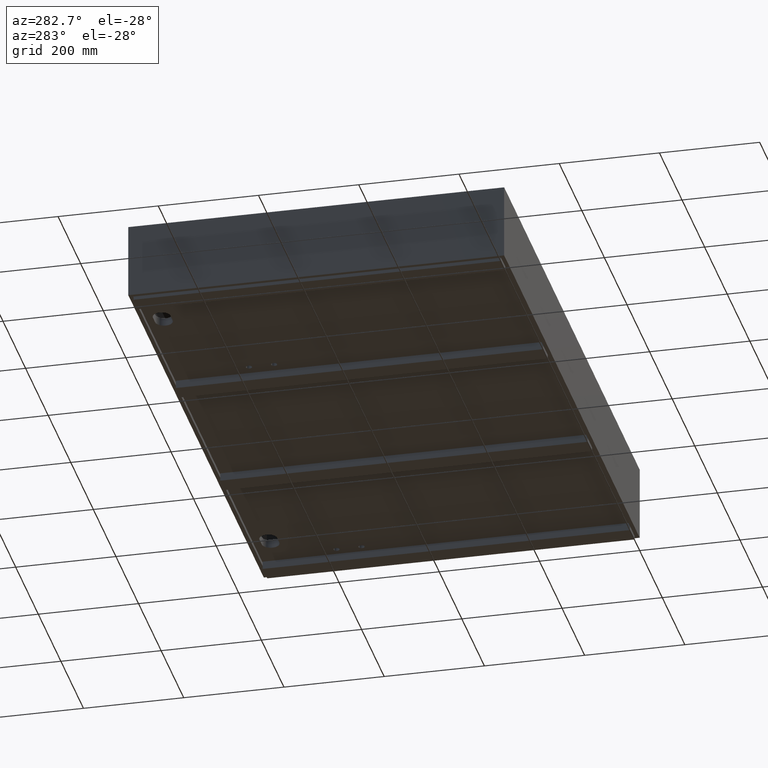
[diagram: clean part render]
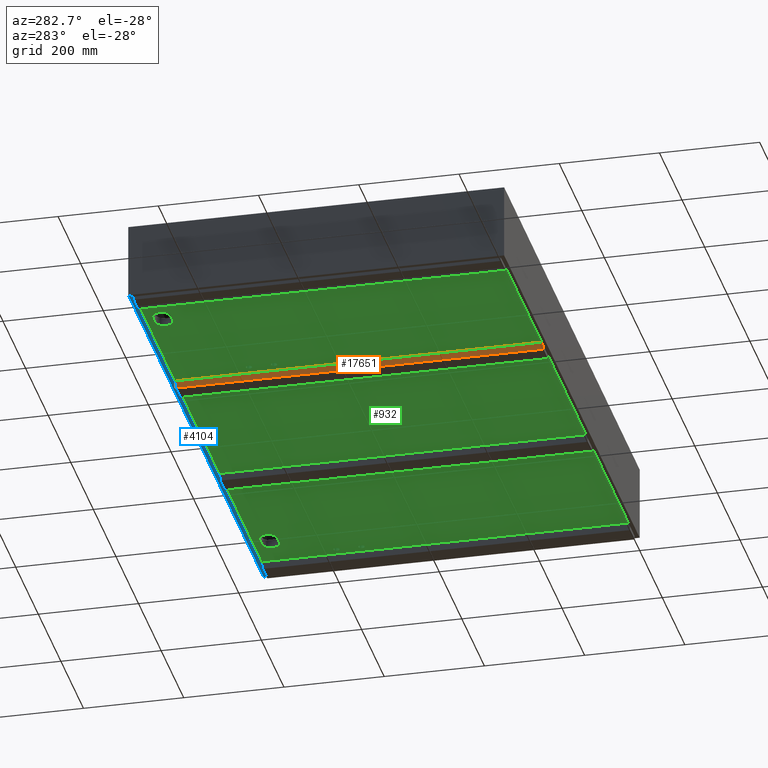
[diagram: same view with three faces highlighted in distinct colors, each labeled with its STEP entity id]
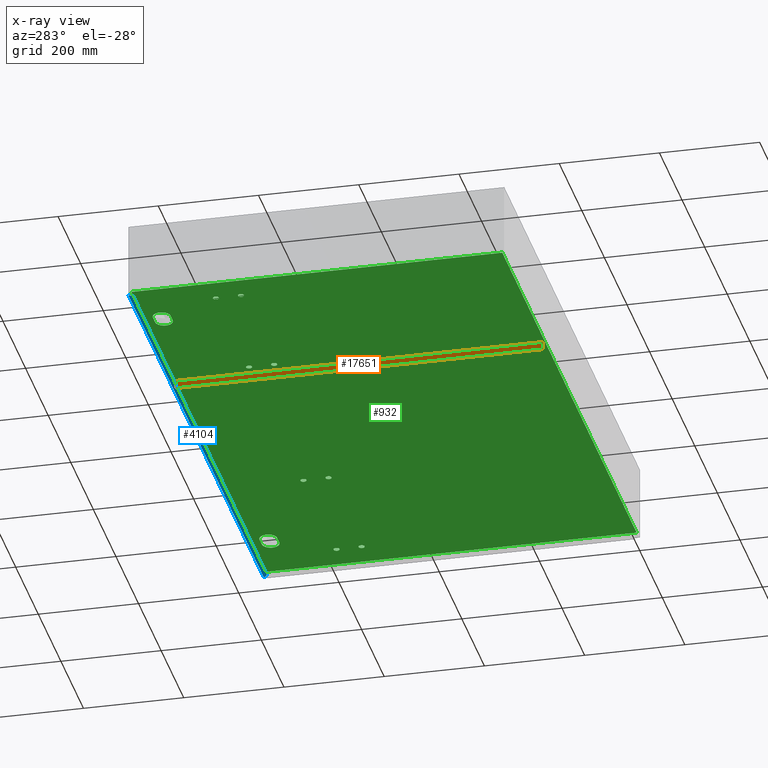
[diagram: x-ray of the same camera — body ghosted, the three highlighted faces saturated]
A machine part, auxiliary view with three faces highlighted in distinct colors.
The next image is the same camera in x-ray (body ghosted, the three faces saturated) — at least one of them is partly hidden behind the body in this view.
Their STEP definitions:

[orange] entity #17651 — the highlighted planar face has unit normal (1, -0, -0).
#112 = EDGE_CURVE ( 'NONE', #16690, #12992, #13057, .T. ) ;
#161 = CARTESIAN_POINT ( 'NONE',  ( 383.1600000000001955, 741.4999000000001388, -157.0000000000003126 ) ) ;
#168 = AXIS2_PLACEMENT_3D ( 'NONE', #18053, #5183, #10916 ) ;
#302 = DIRECTION ( 'NONE',  ( 1.423362852083534639E-16, 0.0000000000000000000, 1.000000000000000000 ) ) ;
#656 = ORIENTED_EDGE ( 'NONE', *, *, #112, .F. ) ;
#1044 = EDGE_CURVE ( 'NONE', #12992, #14423, #5702, .T. ) ;
#1597 = CARTESIAN_POINT ( 'NONE',  ( 383.1600000000001955, 741.4999000000001388, -141.0000000000002842 ) ) ;
#2062 = EDGE_LOOP ( 'NONE', ( #6955, #13402, #656, #9463 ) ) ;
#3497 = VERTEX_POINT ( 'NONE', #15848 ) ;
#3734 = CARTESIAN_POINT ( 'NONE',  ( 383.1600000000001955, 741.4999000000001388, -141.0000000000002842 ) ) ;
#4249 = VECTOR ( 'NONE', #7349, 1000.000000000000000 ) ;
#4493 = CARTESIAN_POINT ( 'NONE',  ( 383.1600000000001955, 741.4999000000001388, -157.0000000000003126 ) ) ;
#5183 = DIRECTION ( 'NONE',  ( 1.000000000000000000, -7.573145812333373714E-17, -1.423362852083534639E-16 ) ) ;
#5702 = LINE ( 'NONE', #11432, #12082 ) ;
#5903 = DIRECTION ( 'NONE',  ( 7.573145812333373714E-17, 1.000000000000000000, 3.851859888774471706E-34 ) ) ;
#5996 = CARTESIAN_POINT ( 'NONE',  ( 383.1600000000001955, 8.499999999999952038, -157.0000000000003126 ) ) ;
#6615 = FACE_OUTER_BOUND ( 'NONE', #2062, .T. ) ;
#6955 = ORIENTED_EDGE ( 'NONE', *, *, #12569, .T. ) ;
#7349 = DIRECTION ( 'NONE',  ( 7.573145812333373714E-17, 1.000000000000000000, 3.851859888774471706E-34 ) ) ;
#7468 = LINE ( 'NONE', #13201, #8580 ) ;
#8580 = VECTOR ( 'NONE', #302, 1000.000000000000000 ) ;
#9463 = ORIENTED_EDGE ( 'NONE', *, *, #17490, .T. ) ;
#10916 = DIRECTION ( 'NONE',  ( -1.423362852083534639E-16, 0.0000000000000000000, -1.000000000000000000 ) ) ;
#11206 = VECTOR ( 'NONE', #5903, 1000.000000000000000 ) ;
#11432 = CARTESIAN_POINT ( 'NONE',  ( 383.1600000000001955, 741.4999000000001388, -157.0000000000003126 ) ) ;
#12082 = VECTOR ( 'NONE', #17164, 1000.000000000000000 ) ;
#12337 = PLANE ( 'NONE',  #168 ) ;
#12569 = EDGE_CURVE ( 'NONE', #3497, #14423, #14483, .T. ) ;
#12992 = VERTEX_POINT ( 'NONE', #4493 ) ;
#13057 = LINE ( 'NONE', #161, #11206 ) ;
#13201 = CARTESIAN_POINT ( 'NONE',  ( 383.1600000000001955, 8.499999999999952038, -157.0000000000003126 ) ) ;
#13402 = ORIENTED_EDGE ( 'NONE', *, *, #1044, .F. ) ;
#14423 = VERTEX_POINT ( 'NONE', #3734 ) ;
#14483 = LINE ( 'NONE', #1597, #4249 ) ;
#15848 = CARTESIAN_POINT ( 'NONE',  ( 383.1600000000001955, 8.499999999999952038, -141.0000000000002842 ) ) ;
#16690 = VERTEX_POINT ( 'NONE', #5996 ) ;
#17164 = DIRECTION ( 'NONE',  ( 1.423362852083534639E-16, 0.0000000000000000000, 1.000000000000000000 ) ) ;
#17490 = EDGE_CURVE ( 'NONE', #16690, #3497, #7468, .T. ) ;
#17651 = ADVANCED_FACE ( 'NONE', ( #6615 ), #12337, .F. ) ;
#18053 = CARTESIAN_POINT ( 'NONE',  ( 383.1600000000001955, 741.4999000000001388, -157.0000000000003126 ) ) ;

[blue] entity #4104 — the highlighted planar face has unit normal (-0, 0, -1).
#524 = ORIENTED_EDGE ( 'NONE', *, *, #17081, .T. ) ;
#771 = DIRECTION ( 'NONE',  ( -6.516564522766498812E-33, 2.510089349785503441E-66, -1.000000000000000000 ) ) ;
#1637 = VECTOR ( 'NONE', #2807, 1000.000000000000114 ) ;
#1835 = CARTESIAN_POINT ( 'NONE',  ( 3.999999999999892530, 745.9999000000000251, -150.0000000000000284 ) ) ;
#1961 = VECTOR ( 'NONE', #7579, 1000.000000000000114 ) ;
#2185 = FACE_OUTER_BOUND ( 'NONE', #15066, .T. ) ;
#2807 = DIRECTION ( 'NONE',  ( -0.7071067811865522357, -0.7071067811865426878, 0.0000000000000000000 ) ) ;
#3954 = LINE ( 'NONE', #9704, #10101 ) ;
#4104 = ADVANCED_FACE ( 'NONE', ( #2185 ), #7934, .T. ) ;
#4303 = CARTESIAN_POINT ( 'NONE',  ( 8.000000000000007105, 741.9999000000000251, -150.0000000000000284 ) ) ;
#4620 = AXIS2_PLACEMENT_3D ( 'NONE', #13670, #771, #6530 ) ;
#4848 = LINE ( 'NONE', #10587, #7460 ) ;
#6052 = EDGE_CURVE ( 'NONE', #14312, #6305, #3954, .T. ) ;
#6305 = VERTEX_POINT ( 'NONE', #4303 ) ;
#6328 = ORIENTED_EDGE ( 'NONE', *, *, #6052, .T. ) ;
#6530 = DIRECTION ( 'NONE',  ( -1.000000000000000000, 1.925929944387235853E-34, 6.516564522766498812E-33 ) ) ;
#6565 = VERTEX_POINT ( 'NONE', #14133 ) ;
#6758 = VERTEX_POINT ( 'NONE', #13298 ) ;
#6953 = ORIENTED_EDGE ( 'NONE', *, *, #8910, .F. ) ;
#7460 = VECTOR ( 'NONE', #16320, 1000.000000000000000 ) ;
#7579 = DIRECTION ( 'NONE',  ( -0.7071067811865522357, 0.7071067811865426878, 0.0000000000000000000 ) ) ;
#7934 = PLANE ( 'NONE',  #4620 ) ;
#8498 = ORIENTED_EDGE ( 'NONE', *, *, #14920, .T. ) ;
#8910 = EDGE_CURVE ( 'NONE', #6565, #6758, #4848, .T. ) ;
#9704 = CARTESIAN_POINT ( 'NONE',  ( 0.0000000000000000000, 741.9999000000000251, -150.0000000000000284 ) ) ;
#9962 = LINE ( 'NONE', #15690, #1637 ) ;
#10101 = VECTOR ( 'NONE', #15436, 1000.000000000000000 ) ;
#10587 = CARTESIAN_POINT ( 'NONE',  ( 0.0000000000000000000, 749.9999000000000251, -150.0000000000000284 ) ) ;
#13298 = CARTESIAN_POINT ( 'NONE',  ( 0.0000000000000000000, 749.9999000000000251, -150.0000000000000284 ) ) ;
#13670 = CARTESIAN_POINT ( 'NONE',  ( 0.0000000000000000000, 741.9999000000000251, -150.0000000000000284 ) ) ;
#14133 = CARTESIAN_POINT ( 'NONE',  ( 1200.000000000000000, 749.9999000000000251, -150.0000000000000284 ) ) ;
#14312 = VERTEX_POINT ( 'NONE', #16233 ) ;
#14729 = LINE ( 'NONE', #1835, #1961 ) ;
#14920 = EDGE_CURVE ( 'NONE', #6565, #14312, #9962, .T. ) ;
#15066 = EDGE_LOOP ( 'NONE', ( #6953, #8498, #6328, #524 ) ) ;
#15436 = DIRECTION ( 'NONE',  ( -1.000000000000000000, 1.925929944387235853E-34, 6.516564522766498812E-33 ) ) ;
#15690 = CARTESIAN_POINT ( 'NONE',  ( 595.9999999999917009, 145.9998999999998546, -150.0000000000000284 ) ) ;
#16233 = CARTESIAN_POINT ( 'NONE',  ( 1192.000000000000000, 741.9999000000000251, -150.0000000000000284 ) ) ;
#16320 = DIRECTION ( 'NONE',  ( -1.000000000000000000, 1.925929944387235853E-34, 6.516564522766498812E-33 ) ) ;
#17081 = EDGE_CURVE ( 'NONE', #6305, #6758, #14729, .T. ) ;

[green] entity #932 — the highlighted planar face has unit normal (0, -0, 1).
#28 = ORIENTED_EDGE ( 'NONE', *, *, #5538, .F. ) ;
#36 = DIRECTION ( 'NONE',  ( 1.000000000000000000, 0.0000000000000000000, 0.0000000000000000000 ) ) ;
#42 = CARTESIAN_POINT ( 'NONE',  ( 1081.999999999999773, 692.4999000000000251, -141.0000000000003695 ) ) ;
#71 = EDGE_CURVE ( 'NONE', #10343, #6970, #3120, .T. ) ;
#249 = CARTESIAN_POINT ( 'NONE',  ( 100.5000000000002558, 709.9999000000000251, -141.0000000000002558 ) ) ;
#356 = DIRECTION ( 'NONE',  ( 0.0000000000000000000, 0.0000000000000000000, -1.000000000000000000 ) ) ;
#394 = EDGE_CURVE ( 'NONE', #6824, #2628, #4899, .T. ) ;
#444 = EDGE_CURVE ( 'NONE', #2767, #4029, #17501, .T. ) ;
#643 = CARTESIAN_POINT ( 'NONE',  ( 834.8400000000001455, 589.9999000000001388, -141.0000000000003411 ) ) ;
#675 = VECTOR ( 'NONE', #13522, 1000.000000000000000 ) ;
#728 = ORIENTED_EDGE ( 'NONE', *, *, #4260, .F. ) ;
#760 = DIRECTION ( 'NONE',  ( -1.000000000000000000, 0.0000000000000000000, 0.0000000000000000000 ) ) ;
#774 = EDGE_CURVE ( 'NONE', #4029, #2767, #1890, .T. ) ;
#826 = CARTESIAN_POINT ( 'NONE',  ( 846.8399999999999181, 589.9999000000001388, -141.0000000000003411 ) ) ;
#829 = CARTESIAN_POINT ( 'NONE',  ( 118.0000000000002132, 692.4999000000001388, -141.0000000000002558 ) ) ;
#832 = CARTESIAN_POINT ( 'NONE',  ( 834.8400000000001455, 539.9999000000001388, -141.0000000000003411 ) ) ;
#909 = VERTEX_POINT ( 'NONE', #832 ) ;
#916 = FACE_BOUND ( 'NONE', #8585, .T. ) ;
#932 = ADVANCED_FACE ( 'NONE', ( #15232, #2342, #8085, #13813, #916, #6672, #12400, #18122, #5253, #10983, #16716 ), #3836, .F. ) ;
#1097 = CARTESIAN_POINT ( 'NONE',  ( 1134.000000000000227, 539.9999000000000251, -141.0000000000002274 ) ) ;
#1190 = EDGE_CURVE ( 'NONE', #14598, #8625, #16323, .T. ) ;
#1254 = VECTOR ( 'NONE', #14984, 1000.000000000000000 ) ;
#1299 = ORIENTED_EDGE ( 'NONE', *, *, #16997, .F. ) ;
#1340 = CIRCLE ( 'NONE', #11861, 5.999999999999894307 ) ;
#1426 = ORIENTED_EDGE ( 'NONE', *, *, #444, .F. ) ;
#1555 = DIRECTION ( 'NONE',  ( 0.0000000000000000000, 0.0000000000000000000, -1.000000000000000000 ) ) ;
#1680 = AXIS2_PLACEMENT_3D ( 'NONE', #11101, #16827, #3948 ) ;
#1690 = DIRECTION ( 'NONE',  ( -1.423362852083534639E-16, 0.0000000000000000000, -1.000000000000000000 ) ) ;
#1830 = VERTEX_POINT ( 'NONE', #4427 ) ;
#1890 = CIRCLE ( 'NONE', #9994, 6.000000000000012434 ) ;
#1913 = DIRECTION ( 'NONE',  ( -1.166200656118861960E-16, 0.0000000000000000000, -1.000000000000000000 ) ) ;
#1959 = ORIENTED_EDGE ( 'NONE', *, *, #6801, .F. ) ;
#1980 = CIRCLE ( 'NONE', #12490, 5.999999999999894307 ) ;
#2013 = VERTEX_POINT ( 'NONE', #643 ) ;
#2017 = CARTESIAN_POINT ( 'NONE',  ( 118.0000000000002132, 709.9999000000000251, -141.0000000000002558 ) ) ;
#2055 = LINE ( 'NONE', #7793, #675 ) ;
#2251 = CARTESIAN_POINT ( 'NONE',  ( 353.1600000000000819, 589.9999000000000251, -141.0000000000002842 ) ) ;
#2342 = FACE_BOUND ( 'NONE', #13786, .T. ) ;
#2425 = DIRECTION ( 'NONE',  ( 1.000000000000000000, 0.0000000000000000000, -1.166200656118861960E-16 ) ) ;
#2568 = AXIS2_PLACEMENT_3D ( 'NONE', #3775, #9524, #15258 ) ;
#2628 = VERTEX_POINT ( 'NONE', #18548 ) ;
#2690 = DIRECTION ( 'NONE',  ( 0.0000000000000000000, 0.0000000000000000000, -1.000000000000000000 ) ) ;
#2745 = DIRECTION ( 'NONE',  ( 1.000000000000000000, 0.0000000000000000000, 0.0000000000000000000 ) ) ;
#2767 = VERTEX_POINT ( 'NONE', #6141 ) ;
#2768 = ORIENTED_EDGE ( 'NONE', *, *, #9822, .F. ) ;
#2783 = DIRECTION ( 'NONE',  ( -1.000000000000000000, 0.0000000000000000000, 0.0000000000000000000 ) ) ;
#2831 = EDGE_CURVE ( 'NONE', #16900, #2949, #3494, .T. ) ;
#2949 = VERTEX_POINT ( 'NONE', #6797 ) ;
#2999 = CARTESIAN_POINT ( 'NONE',  ( 1081.999999999999773, 727.4999000000001388, -141.0000000000003979 ) ) ;
#3120 = CIRCLE ( 'NONE', #11221, 17.50000000000007105 ) ;
#3181 = EDGE_CURVE ( 'NONE', #2628, #2949, #2055, .T. ) ;
#3284 = EDGE_CURVE ( 'NONE', #16900, #6824, #6659, .T. ) ;
#3333 = DIRECTION ( 'NONE',  ( 0.0000000000000000000, 0.0000000000000000000, -1.000000000000000000 ) ) ;
#3378 = DIRECTION ( 'NONE',  ( 0.0000000000000000000, 0.0000000000000000000, -1.000000000000000000 ) ) ;
#3406 = CARTESIAN_POINT ( 'NONE',  ( 1195.000000000000000, 744.9999000000000251, -141.0000000000003695 ) ) ;
#3443 = CARTESIAN_POINT ( 'NONE',  ( 1081.999999999999773, 692.4999000000001388, -141.0000000000003979 ) ) ;
#3494 = LINE ( 'NONE', #9253, #1254 ) ;
#3759 = EDGE_CURVE ( 'NONE', #8547, #2013, #5208, .T. ) ;
#3775 = CARTESIAN_POINT ( 'NONE',  ( 1134.000000000000227, 589.9999000000000251, -141.0000000000002274 ) ) ;
#3794 = AXIS2_PLACEMENT_3D ( 'NONE', #16262, #3378, #9139 ) ;
#3836 = PLANE ( 'NONE',  #15990 ) ;
#3874 = DIRECTION ( 'NONE',  ( -1.423362852083534639E-16, 0.0000000000000000000, -1.000000000000000000 ) ) ;
#3912 = VECTOR ( 'NONE', #8750, 1000.000000000000000 ) ;
#3948 = DIRECTION ( 'NONE',  ( 1.000000000000000000, 0.0000000000000000000, 0.0000000000000000000 ) ) ;
#3960 = DIRECTION ( 'NONE',  ( -1.000000000000000000, 0.0000000000000000000, 0.0000000000000000000 ) ) ;
#4029 = VERTEX_POINT ( 'NONE', #17691 ) ;
#4149 = CARTESIAN_POINT ( 'NONE',  ( 1044.499999999999773, 709.9999000000001388, -141.0000000000003695 ) ) ;
#4150 = ORIENTED_EDGE ( 'NONE', *, *, #6595, .F. ) ;
#4162 = EDGE_CURVE ( 'NONE', #17330, #7810, #6124, .T. ) ;
#4260 = EDGE_CURVE ( 'NONE', #17011, #17692, #6739, .T. ) ;
#4308 = CIRCLE ( 'NONE', #14842, 17.49999999999996092 ) ;
#4381 = ORIENTED_EDGE ( 'NONE', *, *, #394, .T. ) ;
#4427 = CARTESIAN_POINT ( 'NONE',  ( 353.1600000000000819, 539.9999000000000251, -141.0000000000002842 ) ) ;
#4438 = ORIENTED_EDGE ( 'NONE', *, *, #8120, .F. ) ;
#4738 = CIRCLE ( 'NONE', #15255, 6.000000000000005329 ) ;
#4796 = VERTEX_POINT ( 'NONE', #16572 ) ;
#4853 = LINE ( 'NONE', #10593, #16811 ) ;
#4862 = VERTEX_POINT ( 'NONE', #9616 ) ;
#4870 = CARTESIAN_POINT ( 'NONE',  ( 365.1599999999998545, 589.9999000000000251, -141.0000000000002842 ) ) ;
#4883 = EDGE_CURVE ( 'NONE', #17652, #14598, #13665, .T. ) ;
#4899 = LINE ( 'NONE', #10639, #8504 ) ;
#4992 = DIRECTION ( 'NONE',  ( -1.166200656118861960E-16, 0.0000000000000000000, -1.000000000000000000 ) ) ;
#5007 = ORIENTED_EDGE ( 'NONE', *, *, #15781, .F. ) ;
#5040 = DIRECTION ( 'NONE',  ( -1.166200656118861960E-16, 0.0000000000000000000, -1.000000000000000000 ) ) ;
#5113 = VERTEX_POINT ( 'NONE', #7544 ) ;
#5184 = ORIENTED_EDGE ( 'NONE', *, *, #17664, .F. ) ;
#5208 = CIRCLE ( 'NONE', #15710, 5.999999999999894307 ) ;
#5253 = FACE_BOUND ( 'NONE', #8976, .T. ) ;
#5384 = DIRECTION ( 'NONE',  ( 1.000000000000000000, 0.0000000000000000000, 0.0000000000000000000 ) ) ;
#5429 = EDGE_LOOP ( 'NONE', ( #9213, #4150 ) ) ;
#5467 = CARTESIAN_POINT ( 'NONE',  ( 138.0000000000002274, 692.4999000000000251, -141.0000000000002558 ) ) ;
#5504 = CARTESIAN_POINT ( 'NONE',  ( 359.1599999999999682, 589.9999000000000251, -141.0000000000002842 ) ) ;
#5526 = AXIS2_PLACEMENT_3D ( 'NONE', #11109, #16835, #3960 ) ;
#5538 = EDGE_CURVE ( 'NONE', #4862, #17334, #14885, .T. ) ;
#5584 = AXIS2_PLACEMENT_3D ( 'NONE', #17862, #4992, #10731 ) ;
#5589 = CARTESIAN_POINT ( 'NONE',  ( 118.0000000000002132, 709.9999000000000251, -141.0000000000002558 ) ) ;
#5661 = AXIS2_PLACEMENT_3D ( 'NONE', #5504, #11252, #16978 ) ;
#5678 = VERTEX_POINT ( 'NONE', #2251 ) ;
#5693 = EDGE_LOOP ( 'NONE', ( #17477, #14603 ) ) ;
#5779 = CARTESIAN_POINT ( 'NONE',  ( 72.00000000000005684, 539.9999000000000251, -141.0000000000002274 ) ) ;
#5916 = VERTEX_POINT ( 'NONE', #249 ) ;
#6107 = DIRECTION ( 'NONE',  ( -1.000000000000000000, 0.0000000000000000000, 0.0000000000000000000 ) ) ;
#6124 = CIRCLE ( 'NONE', #16629, 6.000000000000005329 ) ;
#6141 = CARTESIAN_POINT ( 'NONE',  ( 60.00000000000004974, 589.9999000000000251, -141.0000000000002274 ) ) ;
#6157 = CARTESIAN_POINT ( 'NONE',  ( 118.0000000000002132, 692.4999000000001388, -141.0000000000002558 ) ) ;
#6173 = EDGE_CURVE ( 'NONE', #17692, #17011, #11907, .T. ) ;
#6500 = AXIS2_PLACEMENT_3D ( 'NONE', #14804, #1913, #7661 ) ;
#6584 = DIRECTION ( 'NONE',  ( -1.000000000000000000, -0.0000000000000000000, -0.0000000000000000000 ) ) ;
#6595 = EDGE_CURVE ( 'NONE', #5678, #9732, #1980, .T. ) ;
#6659 = LINE ( 'NONE', #12385, #17487 ) ;
#6672 = FACE_BOUND ( 'NONE', #16175, .T. ) ;
#6731 = EDGE_LOOP ( 'NONE', ( #8698, #13185, #18373, #7254, #17555 ) ) ;
#6739 = CIRCLE ( 'NONE', #9141, 6.000000000000012434 ) ;
#6782 = AXIS2_PLACEMENT_3D ( 'NONE', #14582, #1690, #7436 ) ;
#6797 = CARTESIAN_POINT ( 'NONE',  ( 5.000000000000004441, 5.000000000000004441, -141.0000000000002274 ) ) ;
#6801 = EDGE_CURVE ( 'NONE', #2013, #8547, #14606, .T. ) ;
#6824 = VERTEX_POINT ( 'NONE', #3406 ) ;
#6852 = DIRECTION ( 'NONE',  ( 0.0000000000000000000, 0.0000000000000000000, -1.000000000000000000 ) ) ;
#6970 = VERTEX_POINT ( 'NONE', #9709 ) ;
#7002 = AXIS2_PLACEMENT_3D ( 'NONE', #7922, #13655, #760 ) ;
#7204 = CARTESIAN_POINT ( 'NONE',  ( 840.8400000000000318, 539.9999000000001388, -141.0000000000003411 ) ) ;
#7254 = ORIENTED_EDGE ( 'NONE', *, *, #71, .F. ) ;
#7275 = EDGE_CURVE ( 'NONE', #1830, #17611, #13716, .T. ) ;
#7308 = DIRECTION ( 'NONE',  ( -1.000000000000000000, 0.0000000000000000000, 0.0000000000000000000 ) ) ;
#7375 = VERTEX_POINT ( 'NONE', #10999 ) ;
#7436 = DIRECTION ( 'NONE',  ( 1.000000000000000000, 0.0000000000000000000, 0.0000000000000000000 ) ) ;
#7453 = ORIENTED_EDGE ( 'NONE', *, *, #3759, .F. ) ;
#7518 = AXIS2_PLACEMENT_3D ( 'NONE', #15578, #2690, #8440 ) ;
#7544 = CARTESIAN_POINT ( 'NONE',  ( 846.8399999999999181, 539.9999000000001388, -141.0000000000003411 ) ) ;
#7564 = ORIENTED_EDGE ( 'NONE', *, *, #2831, .F. ) ;
#7661 = DIRECTION ( 'NONE',  ( 1.000000000000000000, 0.0000000000000000000, 0.0000000000000000000 ) ) ;
#7734 = EDGE_CURVE ( 'NONE', #909, #5113, #18509, .T. ) ;
#7760 = DIRECTION ( 'NONE',  ( -1.423362852083534639E-16, 0.0000000000000000000, -1.000000000000000000 ) ) ;
#7793 = CARTESIAN_POINT ( 'NONE',  ( 5.000000000000004441, 5.000000000000004441, -141.0000000000002274 ) ) ;
#7810 = VERTEX_POINT ( 'NONE', #8235 ) ;
#7922 = CARTESIAN_POINT ( 'NONE',  ( 66.00000000000005684, 589.9999000000000251, -141.0000000000002274 ) ) ;
#8045 = CIRCLE ( 'NONE', #18531, 17.49999999999996092 ) ;
#8078 = AXIS2_PLACEMENT_3D ( 'NONE', #16757, #3874, #9619 ) ;
#8085 = FACE_BOUND ( 'NONE', #5429, .T. ) ;
#8120 = EDGE_CURVE ( 'NONE', #5916, #8306, #8045, .T. ) ;
#8235 = CARTESIAN_POINT ( 'NONE',  ( 1128.000000000000000, 589.9999000000000251, -141.0000000000002274 ) ) ;
#8306 = VERTEX_POINT ( 'NONE', #8558 ) ;
#8440 = DIRECTION ( 'NONE',  ( -1.000000000000000000, 0.0000000000000000000, 0.0000000000000000000 ) ) ;
#8504 = VECTOR ( 'NONE', #16373, 1000.000000000000000 ) ;
#8521 = ORIENTED_EDGE ( 'NONE', *, *, #7734, .F. ) ;
#8547 = VERTEX_POINT ( 'NONE', #826 ) ;
#8558 = CARTESIAN_POINT ( 'NONE',  ( 118.0000000000002132, 727.4999000000002525, -141.0000000000002274 ) ) ;
#8585 = EDGE_LOOP ( 'NONE', ( #1299, #8521 ) ) ;
#8617 = EDGE_CURVE ( 'NONE', #4796, #7375, #4738, .T. ) ;
#8625 = VERTEX_POINT ( 'NONE', #18293 ) ;
#8628 = EDGE_LOOP ( 'NONE', ( #10316, #17418 ) ) ;
#8698 = ORIENTED_EDGE ( 'NONE', *, *, #1190, .F. ) ;
#8750 = DIRECTION ( 'NONE',  ( 1.000000000000000000, -0.0000000000000000000, -1.387778780781444492E-15 ) ) ;
#8794 = ORIENTED_EDGE ( 'NONE', *, *, #6173, .F. ) ;
#8976 = EDGE_LOOP ( 'NONE', ( #8794, #728 ) ) ;
#9090 = DIRECTION ( 'NONE',  ( -1.000000000000000000, 0.0000000000000000000, 0.0000000000000000000 ) ) ;
#9139 = DIRECTION ( 'NONE',  ( -1.000000000000000000, 0.0000000000000000000, 0.0000000000000000000 ) ) ;
#9141 = AXIS2_PLACEMENT_3D ( 'NONE', #16218, #3333, #9090 ) ;
#9201 = DIRECTION ( 'NONE',  ( -1.000000000000000000, 0.0000000000000000000, 1.387778780781444492E-15 ) ) ;
#9213 = ORIENTED_EDGE ( 'NONE', *, *, #9933, .F. ) ;
#9253 = CARTESIAN_POINT ( 'NONE',  ( 5.000000000000004441, 1936.107458164386571, -141.0000000000002274 ) ) ;
#9288 = VERTEX_POINT ( 'NONE', #6157 ) ;
#9483 = EDGE_CURVE ( 'NONE', #8625, #10343, #16173, .T. ) ;
#9524 = DIRECTION ( 'NONE',  ( 0.0000000000000000000, 0.0000000000000000000, -1.000000000000000000 ) ) ;
#9578 = CARTESIAN_POINT ( 'NONE',  ( 5.000000000000004441, 1936.107458164386571, -141.0000000000002274 ) ) ;
#9616 = CARTESIAN_POINT ( 'NONE',  ( 138.0000000000002274, 727.4999000000001388, -141.0000000000002558 ) ) ;
#9619 = DIRECTION ( 'NONE',  ( -1.000000000000000000, 0.0000000000000000000, 0.0000000000000000000 ) ) ;
#9709 = CARTESIAN_POINT ( 'NONE',  ( 1061.999999999999773, 727.4999000000001388, -141.0000000000003695 ) ) ;
#9732 = VERTEX_POINT ( 'NONE', #4870 ) ;
#9744 = CARTESIAN_POINT ( 'NONE',  ( 5.000000000000004441, 744.9999000000000251, -141.0000000000002274 ) ) ;
#9781 = CIRCLE ( 'NONE', #1680, 5.999999999999894307 ) ;
#9822 = EDGE_CURVE ( 'NONE', #17334, #9288, #13724, .T. ) ;
#9909 = CARTESIAN_POINT ( 'NONE',  ( 359.1599999999999682, 589.9999000000000251, -141.0000000000002842 ) ) ;
#9933 = EDGE_CURVE ( 'NONE', #9732, #5678, #13793, .T. ) ;
#9945 = CARTESIAN_POINT ( 'NONE',  ( 1061.999999999999773, 709.9999000000001388, -141.0000000000003695 ) ) ;
#9994 = AXIS2_PLACEMENT_3D ( 'NONE', #13255, #356, #6107 ) ;
#10316 = ORIENTED_EDGE ( 'NONE', *, *, #17722, .F. ) ;
#10343 = VERTEX_POINT ( 'NONE', #4149 ) ;
#10427 = AXIS2_PLACEMENT_3D ( 'NONE', #17911, #5040, #10773 ) ;
#10455 = ORIENTED_EDGE ( 'NONE', *, *, #3181, .T. ) ;
#10593 = CARTESIAN_POINT ( 'NONE',  ( 118.0000000000002132, 727.4999000000001388, -141.0000000000002558 ) ) ;
#10639 = CARTESIAN_POINT ( 'NONE',  ( 1195.000000000000000, 1936.107458164386571, -141.0000000000003695 ) ) ;
#10686 = CIRCLE ( 'NONE', #2568, 6.000000000000005329 ) ;
#10731 = DIRECTION ( 'NONE',  ( 1.000000000000000000, 0.0000000000000000000, 0.0000000000000000000 ) ) ;
#10773 = DIRECTION ( 'NONE',  ( 1.000000000000000000, 0.0000000000000000000, 0.0000000000000000000 ) ) ;
#10983 = FACE_BOUND ( 'NONE', #12631, .T. ) ;
#10999 = CARTESIAN_POINT ( 'NONE',  ( 1140.000000000000227, 539.9999000000000251, -141.0000000000002274 ) ) ;
#11101 = CARTESIAN_POINT ( 'NONE',  ( 359.1599999999999682, 539.9999000000000251, -141.0000000000002842 ) ) ;
#11109 = CARTESIAN_POINT ( 'NONE',  ( 1081.999999999999773, 709.9999000000001388, -141.0000000000003979 ) ) ;
#11199 = EDGE_CURVE ( 'NONE', #7375, #4796, #15611, .T. ) ;
#11221 = AXIS2_PLACEMENT_3D ( 'NONE', #9945, #15669, #2783 ) ;
#11252 = DIRECTION ( 'NONE',  ( -1.166200656118861960E-16, 0.0000000000000000000, -1.000000000000000000 ) ) ;
#11263 = EDGE_LOOP ( 'NONE', ( #7564, #15790, #4381, #10455 ) ) ;
#11329 = DIRECTION ( 'NONE',  ( -1.423362852083534639E-16, 0.0000000000000000000, -1.000000000000000000 ) ) ;
#11422 = EDGE_CURVE ( 'NONE', #8306, #4862, #4853, .T. ) ;
#11861 = AXIS2_PLACEMENT_3D ( 'NONE', #7204, #12938, #36 ) ;
#11869 = EDGE_CURVE ( 'NONE', #6970, #17652, #15882, .T. ) ;
#11907 = CIRCLE ( 'NONE', #3794, 6.000000000000012434 ) ;
#12150 = CARTESIAN_POINT ( 'NONE',  ( 365.1599999999998545, 539.9999000000000251, -141.0000000000002842 ) ) ;
#12385 = CARTESIAN_POINT ( 'NONE',  ( 5.000000000000004441, 744.9999000000000251, -141.0000000000002274 ) ) ;
#12400 = FACE_BOUND ( 'NONE', #5693, .T. ) ;
#12490 = AXIS2_PLACEMENT_3D ( 'NONE', #9909, #15632, #2745 ) ;
#12555 = CARTESIAN_POINT ( 'NONE',  ( 840.8400000000000318, 589.9999000000001388, -141.0000000000003411 ) ) ;
#12585 = DIRECTION ( 'NONE',  ( -1.000000000000000000, 0.0000000000000000000, 0.0000000000000000000 ) ) ;
#12631 = EDGE_LOOP ( 'NONE', ( #1426, #13326 ) ) ;
#12938 = DIRECTION ( 'NONE',  ( -1.166200656118861960E-16, 0.0000000000000000000, -1.000000000000000000 ) ) ;
#13137 = EDGE_LOOP ( 'NONE', ( #5184, #17255 ) ) ;
#13185 = ORIENTED_EDGE ( 'NONE', *, *, #4883, .F. ) ;
#13190 = VECTOR ( 'NONE', #6584, 1000.000000000000000 ) ;
#13255 = CARTESIAN_POINT ( 'NONE',  ( 66.00000000000005684, 589.9999000000000251, -141.0000000000002274 ) ) ;
#13326 = ORIENTED_EDGE ( 'NONE', *, *, #774, .F. ) ;
#13486 = DIRECTION ( 'NONE',  ( 1.000000000000000000, 0.0000000000000000000, 0.0000000000000000000 ) ) ;
#13522 = DIRECTION ( 'NONE',  ( -1.000000000000000000, -0.0000000000000000000, 1.166200656118861960E-16 ) ) ;
#13655 = DIRECTION ( 'NONE',  ( 0.0000000000000000000, 0.0000000000000000000, -1.000000000000000000 ) ) ;
#13665 = CIRCLE ( 'NONE', #5526, 17.50000000000007105 ) ;
#13716 = CIRCLE ( 'NONE', #5584, 5.999999999999894307 ) ;
#13724 = LINE ( 'NONE', #829, #13190 ) ;
#13786 = EDGE_LOOP ( 'NONE', ( #14490, #4438, #5007, #2768, #28 ) ) ;
#13793 = CIRCLE ( 'NONE', #5661, 5.999999999999894307 ) ;
#13813 = FACE_BOUND ( 'NONE', #8628, .T. ) ;
#14447 = CARTESIAN_POINT ( 'NONE',  ( 1134.000000000000227, 589.9999000000000251, -141.0000000000002274 ) ) ;
#14490 = ORIENTED_EDGE ( 'NONE', *, *, #11422, .F. ) ;
#14582 = CARTESIAN_POINT ( 'NONE',  ( 138.0000000000002274, 709.9999000000000251, -141.0000000000002558 ) ) ;
#14598 = VERTEX_POINT ( 'NONE', #42 ) ;
#14603 = ORIENTED_EDGE ( 'NONE', *, *, #11199, .F. ) ;
#14606 = CIRCLE ( 'NONE', #6500, 5.999999999999894307 ) ;
#14804 = CARTESIAN_POINT ( 'NONE',  ( 840.8400000000000318, 589.9999000000001388, -141.0000000000003411 ) ) ;
#14842 = AXIS2_PLACEMENT_3D ( 'NONE', #5589, #11329, #17054 ) ;
#14885 = CIRCLE ( 'NONE', #6782, 17.49999999999996092 ) ;
#14984 = DIRECTION ( 'NONE',  ( -0.0000000000000000000, -1.000000000000000000, -0.0000000000000000000 ) ) ;
#15232 = FACE_BOUND ( 'NONE', #6731, .T. ) ;
#15255 = AXIS2_PLACEMENT_3D ( 'NONE', #1097, #6852, #12585 ) ;
#15258 = DIRECTION ( 'NONE',  ( -1.000000000000000000, 0.0000000000000000000, 0.0000000000000000000 ) ) ;
#15311 = DIRECTION ( 'NONE',  ( 1.166200656118861960E-16, -0.0000000000000000000, 1.000000000000000000 ) ) ;
#15578 = CARTESIAN_POINT ( 'NONE',  ( 1134.000000000000227, 539.9999000000000251, -141.0000000000002274 ) ) ;
#15611 = CIRCLE ( 'NONE', #7518, 6.000000000000005329 ) ;
#15632 = DIRECTION ( 'NONE',  ( -1.166200656118861960E-16, 0.0000000000000000000, -1.000000000000000000 ) ) ;
#15669 = DIRECTION ( 'NONE',  ( -1.423362852083534639E-16, 0.0000000000000000000, -1.000000000000000000 ) ) ;
#15710 = AXIS2_PLACEMENT_3D ( 'NONE', #12555, #18263, #5384 ) ;
#15781 = EDGE_CURVE ( 'NONE', #9288, #5916, #4308, .T. ) ;
#15790 = ORIENTED_EDGE ( 'NONE', *, *, #3284, .T. ) ;
#15882 = LINE ( 'NONE', #2999, #3912 ) ;
#15990 = AXIS2_PLACEMENT_3D ( 'NONE', #9578, #15311, #2425 ) ;
#16173 = CIRCLE ( 'NONE', #8078, 17.50000000000007105 ) ;
#16175 = EDGE_LOOP ( 'NONE', ( #7453, #1959 ) ) ;
#16218 = CARTESIAN_POINT ( 'NONE',  ( 66.00000000000005684, 539.9999000000000251, -141.0000000000002274 ) ) ;
#16262 = CARTESIAN_POINT ( 'NONE',  ( 66.00000000000005684, 539.9999000000000251, -141.0000000000002274 ) ) ;
#16323 = LINE ( 'NONE', #3443, #17963 ) ;
#16324 = DIRECTION ( 'NONE',  ( 1.000000000000000000, 0.0000000000000000000, 0.0000000000000000000 ) ) ;
#16373 = DIRECTION ( 'NONE',  ( -0.0000000000000000000, -1.000000000000000000, -0.0000000000000000000 ) ) ;
#16572 = CARTESIAN_POINT ( 'NONE',  ( 1128.000000000000000, 539.9999000000000251, -141.0000000000002274 ) ) ;
#16629 = AXIS2_PLACEMENT_3D ( 'NONE', #14447, #1555, #7308 ) ;
#16655 = CARTESIAN_POINT ( 'NONE',  ( 1081.999999999999773, 727.4999000000001388, -141.0000000000003979 ) ) ;
#16716 = FACE_OUTER_BOUND ( 'NONE', #11263, .T. ) ;
#16745 = CARTESIAN_POINT ( 'NONE',  ( 60.00000000000004974, 539.9999000000000251, -141.0000000000002274 ) ) ;
#16757 = CARTESIAN_POINT ( 'NONE',  ( 1061.999999999999773, 709.9999000000001388, -141.0000000000003695 ) ) ;
#16811 = VECTOR ( 'NONE', #16324, 1000.000000000000000 ) ;
#16827 = DIRECTION ( 'NONE',  ( -1.166200656118861960E-16, 0.0000000000000000000, -1.000000000000000000 ) ) ;
#16835 = DIRECTION ( 'NONE',  ( -1.423362852083534639E-16, 0.0000000000000000000, -1.000000000000000000 ) ) ;
#16900 = VERTEX_POINT ( 'NONE', #9744 ) ;
#16978 = DIRECTION ( 'NONE',  ( 1.000000000000000000, 0.0000000000000000000, 0.0000000000000000000 ) ) ;
#16997 = EDGE_CURVE ( 'NONE', #5113, #909, #1340, .T. ) ;
#17011 = VERTEX_POINT ( 'NONE', #5779 ) ;
#17054 = DIRECTION ( 'NONE',  ( 1.000000000000000000, 0.0000000000000000000, 0.0000000000000000000 ) ) ;
#17255 = ORIENTED_EDGE ( 'NONE', *, *, #4162, .F. ) ;
#17330 = VERTEX_POINT ( 'NONE', #18348 ) ;
#17334 = VERTEX_POINT ( 'NONE', #5467 ) ;
#17418 = ORIENTED_EDGE ( 'NONE', *, *, #7275, .F. ) ;
#17477 = ORIENTED_EDGE ( 'NONE', *, *, #8617, .F. ) ;
#17487 = VECTOR ( 'NONE', #18103, 1000.000000000000000 ) ;
#17501 = CIRCLE ( 'NONE', #7002, 6.000000000000012434 ) ;
#17555 = ORIENTED_EDGE ( 'NONE', *, *, #9483, .F. ) ;
#17611 = VERTEX_POINT ( 'NONE', #12150 ) ;
#17652 = VERTEX_POINT ( 'NONE', #16655 ) ;
#17664 = EDGE_CURVE ( 'NONE', #7810, #17330, #10686, .T. ) ;
#17691 = CARTESIAN_POINT ( 'NONE',  ( 72.00000000000005684, 589.9999000000000251, -141.0000000000002274 ) ) ;
#17692 = VERTEX_POINT ( 'NONE', #16745 ) ;
#17722 = EDGE_CURVE ( 'NONE', #17611, #1830, #9781, .T. ) ;
#17862 = CARTESIAN_POINT ( 'NONE',  ( 359.1599999999999682, 539.9999000000000251, -141.0000000000002842 ) ) ;
#17911 = CARTESIAN_POINT ( 'NONE',  ( 840.8400000000000318, 539.9999000000001388, -141.0000000000003411 ) ) ;
#17963 = VECTOR ( 'NONE', #9201, 1000.000000000000000 ) ;
#18103 = DIRECTION ( 'NONE',  ( 1.000000000000000000, 0.0000000000000000000, -1.166200656118861960E-16 ) ) ;
#18122 = FACE_BOUND ( 'NONE', #13137, .T. ) ;
#18263 = DIRECTION ( 'NONE',  ( -1.166200656118861960E-16, 0.0000000000000000000, -1.000000000000000000 ) ) ;
#18293 = CARTESIAN_POINT ( 'NONE',  ( 1061.999999999999773, 692.4999000000001388, -141.0000000000003695 ) ) ;
#18348 = CARTESIAN_POINT ( 'NONE',  ( 1140.000000000000227, 589.9999000000000251, -141.0000000000002274 ) ) ;
#18373 = ORIENTED_EDGE ( 'NONE', *, *, #11869, .F. ) ;
#18509 = CIRCLE ( 'NONE', #10427, 5.999999999999894307 ) ;
#18531 = AXIS2_PLACEMENT_3D ( 'NONE', #2017, #7760, #13486 ) ;
#18548 = CARTESIAN_POINT ( 'NONE',  ( 1195.000000000000000, 5.000000000000004441, -141.0000000000003695 ) ) ;